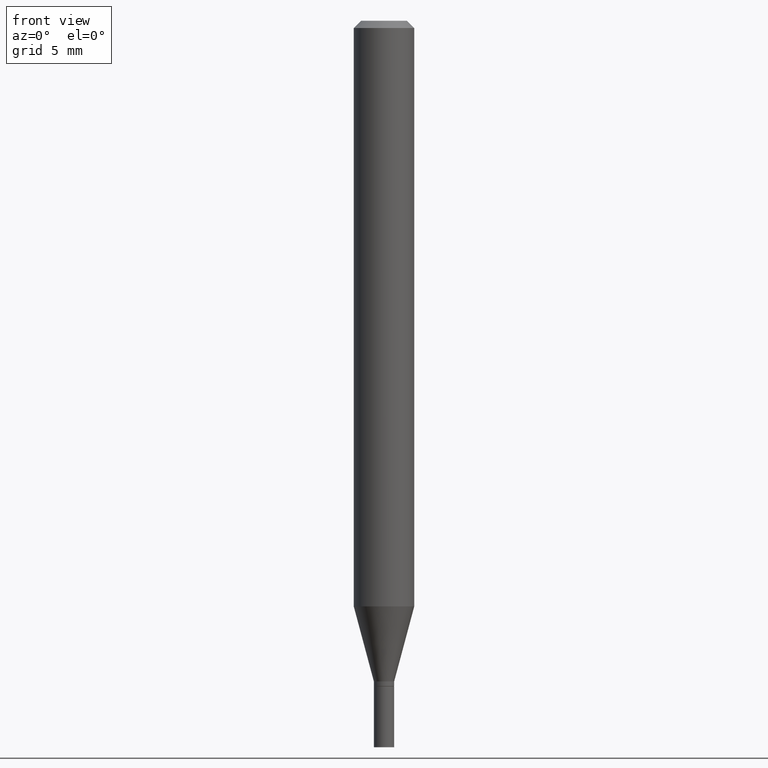
[diagram: clean part render]
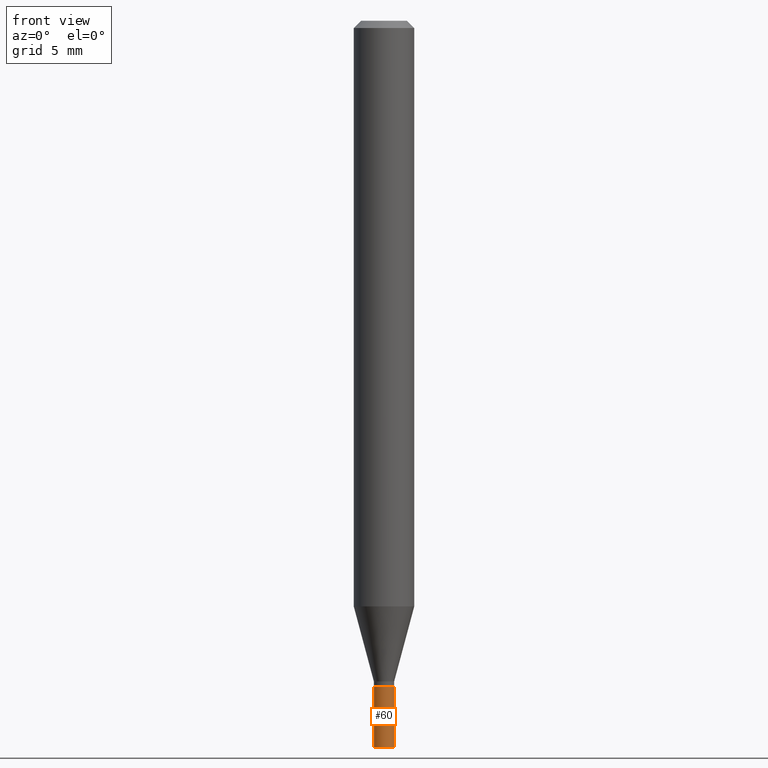
[diagram: same view with one face highlighted and labeled with its STEP entity id]
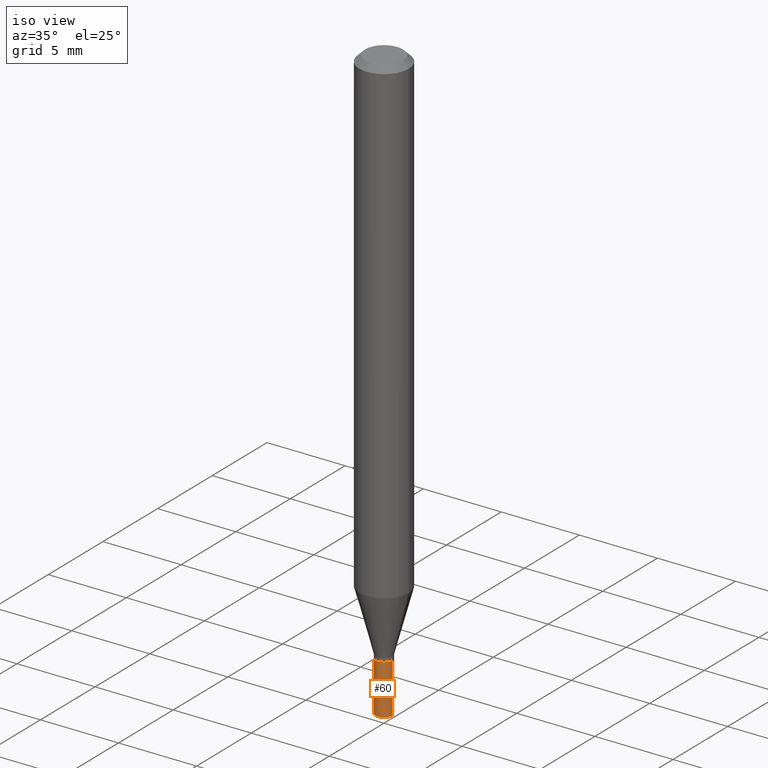
[diagram: same view with one face highlighted and labeled with its STEP entity id]
A machine part, front view. The second image highlights one B-rep face of the part: STEP entity #60.
A second angle (iso view) of the same face is appended — the face is thin or edge-on in the first view.
In plain terms, the highlighted cylindrical surface (edge-blend (fillet) strip) has radius 0.5334 mm, axis along (-0, 0, 1).
Its self-contained STEP definition (entity closure, byte-faithful):
#11 = DIRECTION ( 'NONE',  ( -2.445468806185136597E-29, 3.491481338843145583E-15, 1.000000000000000000 ) ) ;
#17 = DIRECTION ( 'NONE',  ( 1.000000000000000000, -6.982962677686265922E-15, 4.876176775795935232E-29 ) ) ;
#20 = VERTEX_POINT ( 'NONE', #353 ) ;
#23 = DIRECTION ( 'NONE',  ( -2.445468806185136877E-29, 3.491481338843145188E-15, 1.000000000000000000 ) ) ;
#26 = CARTESIAN_POINT ( 'NONE',  ( 0.02100000000000000477, -5.383864224496130787E-15, -1.500000000000000222 ) ) ;
#60 = ADVANCED_FACE ( 'NONE', ( #332 ), #220, .T. ) ;
#89 = CIRCLE ( 'NONE', #426, 0.02100000000000000477 ) ;
#99 = CARTESIAN_POINT ( 'NONE',  ( 0.02100000000000000477, -4.943937575801894533E-15, -1.374000000000000110 ) ) ;
#101 = EDGE_CURVE ( 'NONE', #462, #356, #174, .T. ) ;
#103 = ORIENTED_EDGE ( 'NONE', *, *, #225, .F. ) ;
#104 = AXIS2_PLACEMENT_3D ( 'NONE', #191, #11, #17 ) ;
#132 = ORIENTED_EDGE ( 'NONE', *, *, #309, .F. ) ;
#174 = CIRCLE ( 'NONE', #461, 0.02100000000000000477 ) ;
#177 = CARTESIAN_POINT ( 'NONE',  ( 0.02100000000000000477, -1.466422162314116246E-16, 1.023997122917146650E-30 ) ) ;
#188 = CARTESIAN_POINT ( 'NONE',  ( 3.668203209277704895E-29, -5.237222008264718177E-15, -1.500000000000000222 ) ) ;
#191 = CARTESIAN_POINT ( 'NONE',  ( 0.000000000000000000, 0.000000000000000000, 0.000000000000000000 ) ) ;
#198 = DIRECTION ( 'NONE',  ( -2.445468806185136597E-29, 3.491481338843145583E-15, 1.000000000000000000 ) ) ;
#220 = CYLINDRICAL_SURFACE ( 'NONE', #104, 0.02100000000000000477 ) ;
#225 = EDGE_CURVE ( 'NONE', #462, #20, #247, .T. ) ;
#247 = LINE ( 'NONE', #455, #407 ) ;
#248 = EDGE_LOOP ( 'NONE', ( #103, #422, #322, #132 ) ) ;
#273 = CARTESIAN_POINT ( 'NONE',  ( 3.360074139698378339E-29, -4.797295359570482711E-15, -1.374000000000000110 ) ) ;
#286 = CARTESIAN_POINT ( 'NONE',  ( -0.02100000000000000477, -4.868044709407979667E-15, -1.500000000000000222 ) ) ;
#288 = EDGE_CURVE ( 'NONE', #356, #362, #351, .T. ) ;
#309 = EDGE_CURVE ( 'NONE', #20, #362, #89, .T. ) ;
#322 = ORIENTED_EDGE ( 'NONE', *, *, #288, .T. ) ;
#332 = FACE_OUTER_BOUND ( 'NONE', #248, .T. ) ;
#351 = LINE ( 'NONE', #177, #408 ) ;
#353 = CARTESIAN_POINT ( 'NONE',  ( -0.02100000000000000477, -4.868044709407979667E-15, -1.374000000000000110 ) ) ;
#356 = VERTEX_POINT ( 'NONE', #26 ) ;
#362 = VERTEX_POINT ( 'NONE', #99 ) ;
#386 = DIRECTION ( 'NONE',  ( -2.445468806185136877E-29, 3.491481338843145188E-15, 1.000000000000000000 ) ) ;
#407 = VECTOR ( 'NONE', #23, 39.37007874015748143 ) ;
#408 = VECTOR ( 'NONE', #386, 39.37007874015748143 ) ;
#409 = DIRECTION ( 'NONE',  ( 1.000000000000000000, -6.982962677686284854E-15, 0.000000000000000000 ) ) ;
#418 = DIRECTION ( 'NONE',  ( -2.445468806185136597E-29, 3.491481338843145583E-15, 1.000000000000000000 ) ) ;
#422 = ORIENTED_EDGE ( 'NONE', *, *, #101, .T. ) ;
#426 = AXIS2_PLACEMENT_3D ( 'NONE', #273, #418, #427 ) ;
#427 = DIRECTION ( 'NONE',  ( 1.000000000000000000, -6.982962677686284854E-15, 0.000000000000000000 ) ) ;
#455 = CARTESIAN_POINT ( 'NONE',  ( -0.02100000000000000477, 1.492139745096210730E-16, -1.032976368953530510E-30 ) ) ;
#461 = AXIS2_PLACEMENT_3D ( 'NONE', #188, #198, #409 ) ;
#462 = VERTEX_POINT ( 'NONE', #286 ) ;